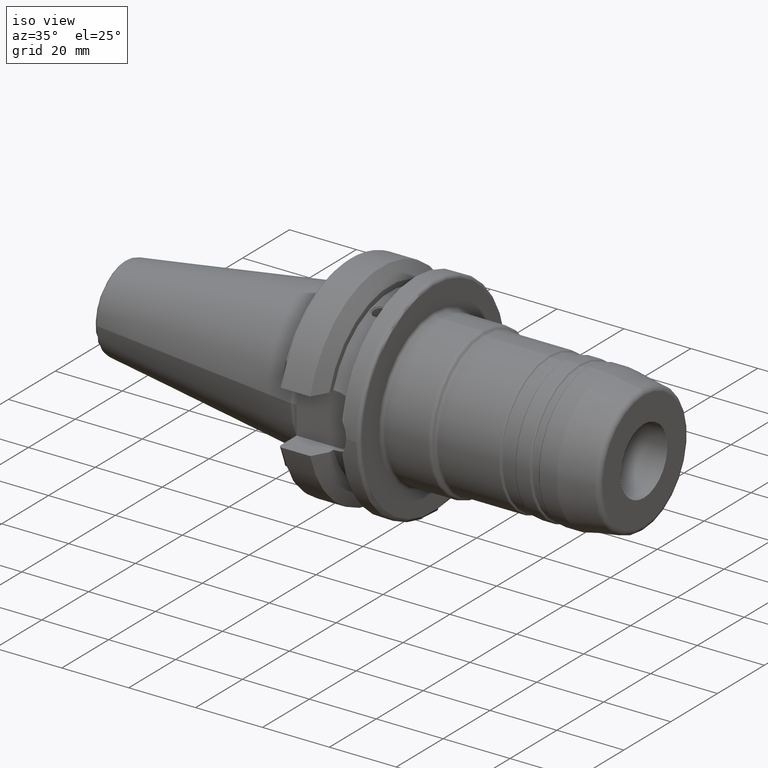
[diagram: clean part render]
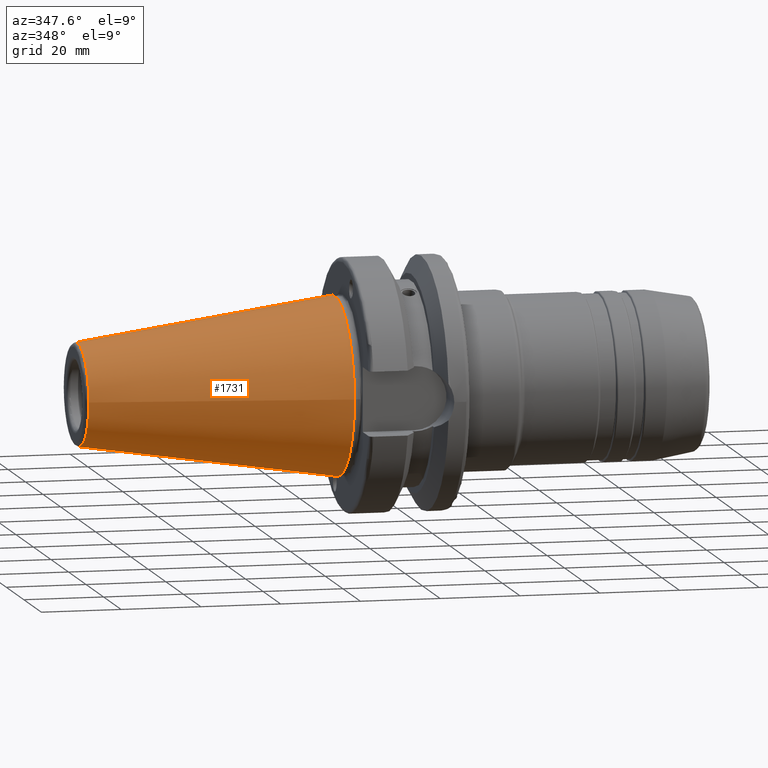
[diagram: tour spotlight — one face highlighted and labeled with its STEP entity id]
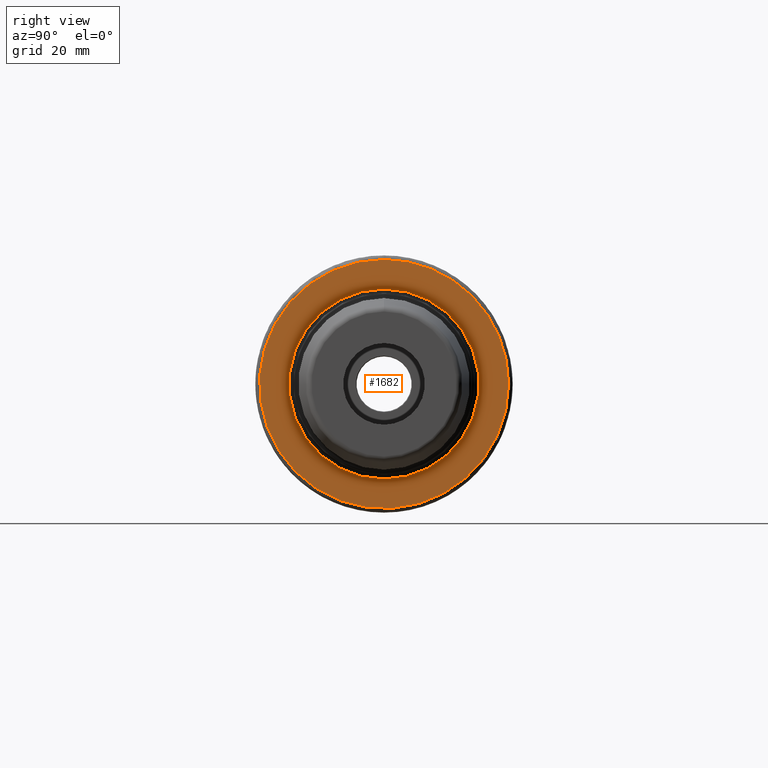
[diagram: tour spotlight — one face highlighted and labeled with its STEP entity id]
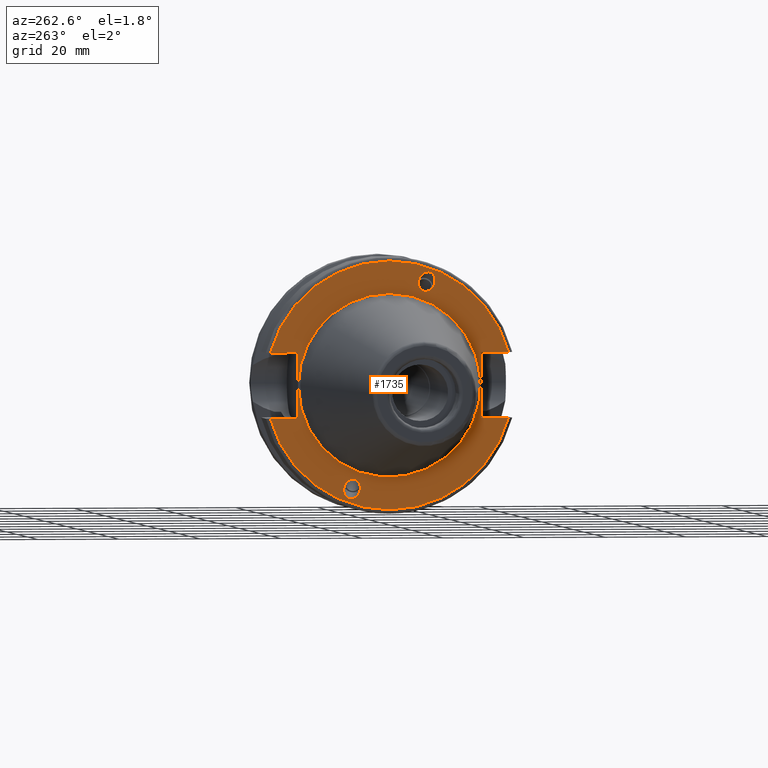
[diagram: tour spotlight — one face highlighted and labeled with its STEP entity id]
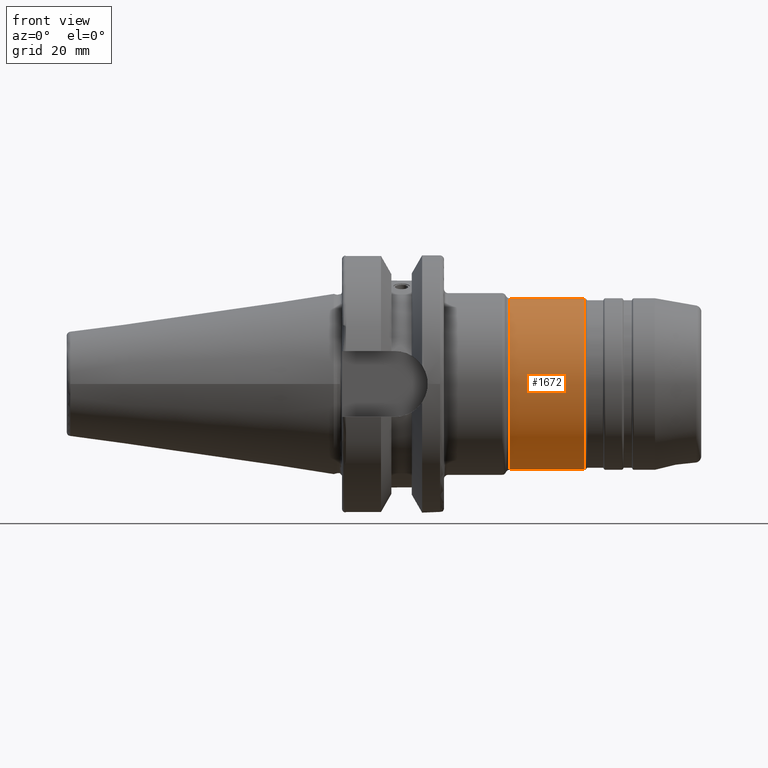
[diagram: tour spotlight — one face highlighted and labeled with its STEP entity id]
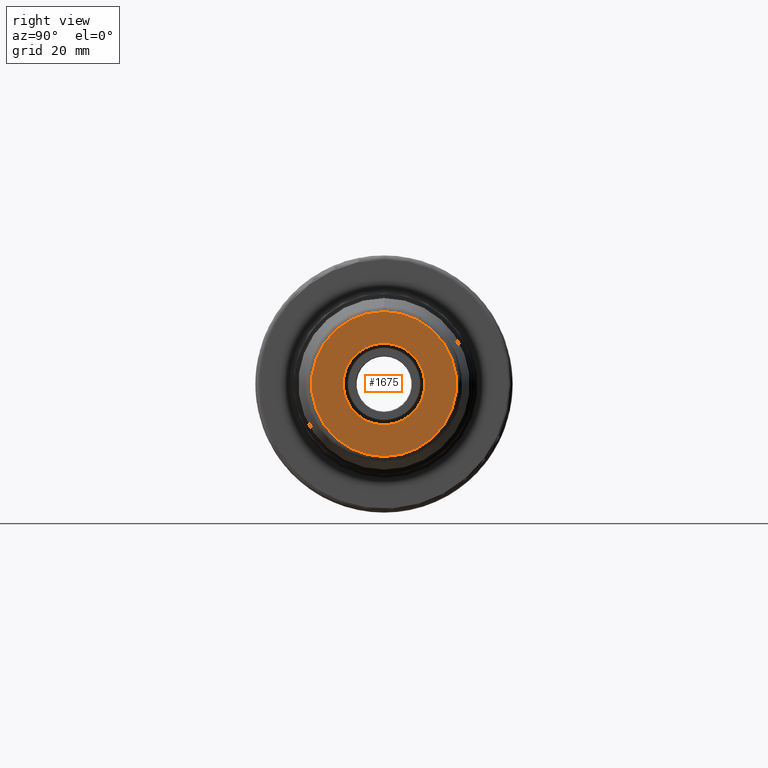
[diagram: tour spotlight — one face highlighted and labeled with its STEP entity id]
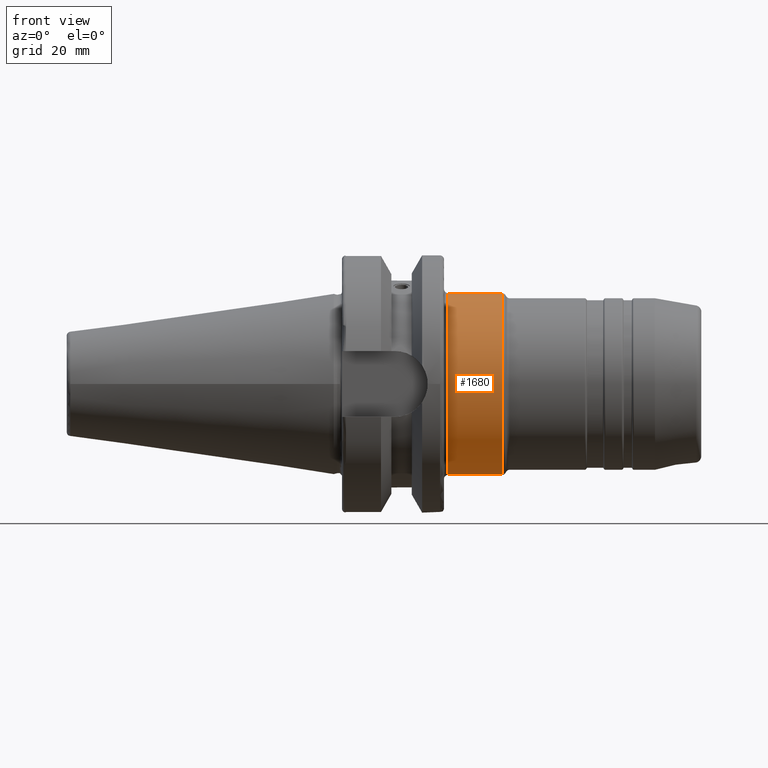
[diagram: tour spotlight — one face highlighted and labeled with its STEP entity id]
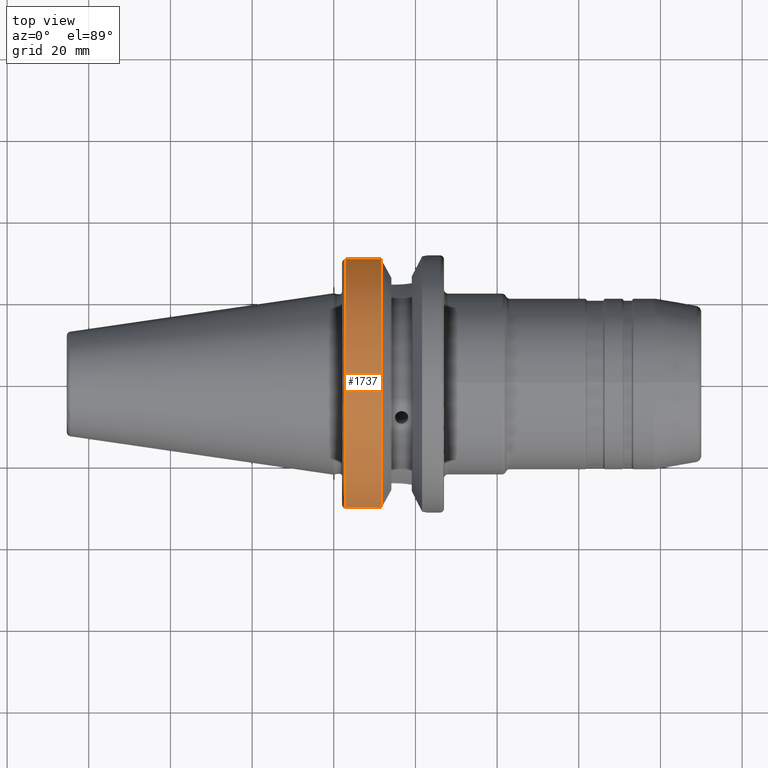
[diagram: tour spotlight — one face highlighted and labeled with its STEP entity id]
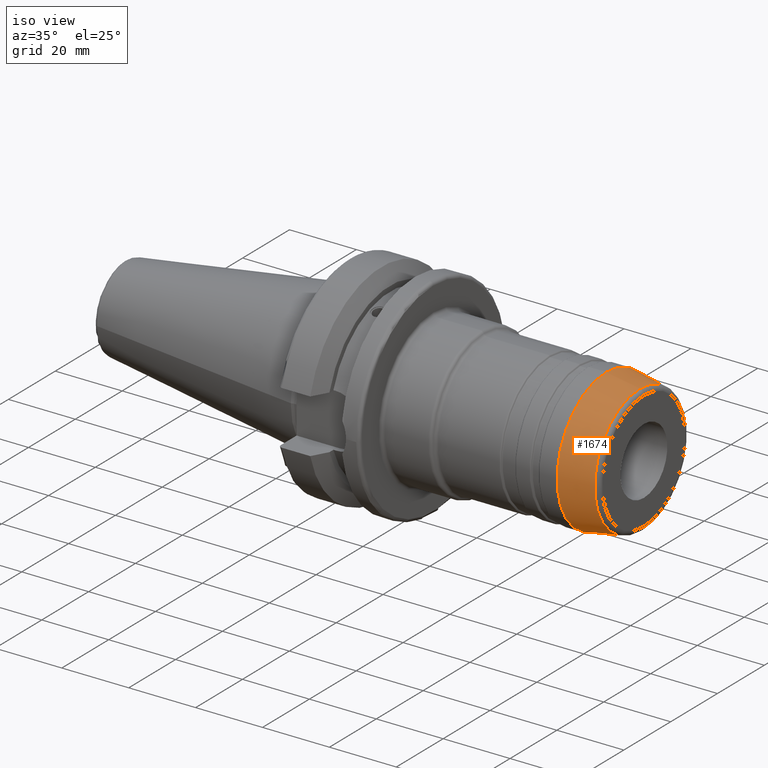
[diagram: tour spotlight — one face highlighted and labeled with its STEP entity id]
A machine part: a face-by-face anatomy tour. The part has 90 B-rep faces; the first image is the clean iso view, then the 8 largest visible faces are spotlighted one at a time (largest first), each with its STEP entity span.

Face 1 — auxiliary view, entity #1731. In plain terms, the highlighted conical surface has half-angle 8.297 deg.
Definition (entity closure, byte-faithful):
#131=CONICAL_SURFACE('',#1996,17.5186442890469,0.144812498238939);
#212=FACE_OUTER_BOUND('',#315,.T.);
#315=EDGE_LOOP('',(#1546,#1547,#1548,#1549,#1550,#1551,#1552));
#398=LINE('',#3372,#468);
#468=VECTOR('',#2566,17.5186442890469);
#604=CIRCLE('',#1992,12.8122885780937);
#605=CIRCLE('',#1993,12.8122885780937);
#606=CIRCLE('',#1994,12.8122885780937);
#608=CIRCLE('',#1997,22.225);
#609=CIRCLE('',#1998,22.225);
#801=VERTEX_POINT('',#3360);
#802=VERTEX_POINT('',#3361);
#803=VERTEX_POINT('',#3363);
#804=VERTEX_POINT('',#3368);
#805=VERTEX_POINT('',#3369);
#1058=EDGE_CURVE('',#801,#802,#604,.T.);
#1059=EDGE_CURVE('',#803,#801,#605,.T.);
#1060=EDGE_CURVE('',#802,#803,#606,.T.);
#1062=EDGE_CURVE('',#804,#805,#608,.T.);
#1063=EDGE_CURVE('',#805,#804,#609,.T.);
#1064=EDGE_CURVE('',#805,#803,#398,.T.);
#1546=ORIENTED_EDGE('',*,*,#1062,.F.);
#1547=ORIENTED_EDGE('',*,*,#1063,.F.);
#1548=ORIENTED_EDGE('',*,*,#1064,.T.);
#1549=ORIENTED_EDGE('',*,*,#1059,.T.);
#1550=ORIENTED_EDGE('',*,*,#1058,.T.);
#1551=ORIENTED_EDGE('',*,*,#1060,.T.);
#1552=ORIENTED_EDGE('',*,*,#1064,.F.);
#1731=ADVANCED_FACE('',(#212),#131,.T.);
#1992=AXIS2_PLACEMENT_3D('',#3362,#2552,#2553);
#1993=AXIS2_PLACEMENT_3D('',#3364,#2554,#2555);
#1994=AXIS2_PLACEMENT_3D('',#3365,#2556,#2557);
#1996=AXIS2_PLACEMENT_3D('',#3367,#2560,#2561);
#1997=AXIS2_PLACEMENT_3D('',#3370,#2562,#2563);
#1998=AXIS2_PLACEMENT_3D('',#3371,#2564,#2565);
#2552=DIRECTION('center_axis',(1.,0.,0.));
#2553=DIRECTION('ref_axis',(0.,0.,-1.));
#2554=DIRECTION('center_axis',(1.,0.,0.));
#2555=DIRECTION('ref_axis',(0.,0.,-1.));
#2556=DIRECTION('center_axis',(1.,0.,0.));
#2557=DIRECTION('ref_axis',(0.,0.,-1.));
#2560=DIRECTION('center_axis',(1.,0.,0.));
#2561=DIRECTION('ref_axis',(0.,1.,0.));
#2562=DIRECTION('center_axis',(1.,0.,0.));
#2563=DIRECTION('ref_axis',(0.,0.,-1.));
#2564=DIRECTION('center_axis',(1.,0.,0.));
#2565=DIRECTION('ref_axis',(0.,0.,-1.));
#2566=DIRECTION('',(-0.989532981063281,0.144306893071729,1.76724974695192E-17));
#3360=CARTESIAN_POINT('',(-64.5443068930717,12.8122885780937,0.));
#3361=CARTESIAN_POINT('',(-64.5443068930717,-1.56905281969147E-15,12.8122885780937));
#3362=CARTESIAN_POINT('Origin',(-64.5443068930717,0.,0.));
#3363=CARTESIAN_POINT('',(-64.5443068930717,-12.8122885780937,-1.56905281969147E-15));
#3364=CARTESIAN_POINT('Origin',(-64.5443068930717,0.,0.));
#3365=CARTESIAN_POINT('Origin',(-64.5443068930717,0.,0.));
#3367=CARTESIAN_POINT('Origin',(-32.2721534465359,0.,0.));
#3368=CARTESIAN_POINT('',(1.11022302462516E-15,22.225,0.));
#3369=CARTESIAN_POINT('',(4.44089209850063E-15,-22.225,-2.72177751110499E-15));
#3370=CARTESIAN_POINT('Origin',(0.,0.,0.));
#3371=CARTESIAN_POINT('Origin',(0.,0.,0.));
#3372=CARTESIAN_POINT('',(-32.2721534465359,-17.5186442890469,-2.14541516539823E-15));

Face 2 — right view, entity #1682. In plain terms, the highlighted planar face has unit normal (1, 0, 0).
Definition (entity closure, byte-faithful):
#38=PLANE('',#1865);
#80=FACE_BOUND('',#257,.T.);
#163=FACE_OUTER_BOUND('',#256,.T.);
#256=EDGE_LOOP('',(#1256,#1257));
#257=EDGE_LOOP('',(#1258));
#543=CIRCLE('',#1864,23.25);
#544=CIRCLE('',#1866,30.5);
#545=CIRCLE('',#1867,30.5);
#688=VERTEX_POINT('',#2872);
#689=VERTEX_POINT('',#2876);
#690=VERTEX_POINT('',#2877);
#904=EDGE_CURVE('',#688,#688,#543,.T.);
#905=EDGE_CURVE('',#689,#690,#544,.T.);
#906=EDGE_CURVE('',#690,#689,#545,.T.);
#1256=ORIENTED_EDGE('',*,*,#905,.T.);
#1257=ORIENTED_EDGE('',*,*,#906,.T.);
#1258=ORIENTED_EDGE('',*,*,#904,.F.);
#1682=ADVANCED_FACE('',(#163,#80),#38,.T.);
#1864=AXIS2_PLACEMENT_3D('',#2874,#2244,#2245);
#1865=AXIS2_PLACEMENT_3D('',#2875,#2246,#2247);
#1866=AXIS2_PLACEMENT_3D('',#2878,#2248,#2249);
#1867=AXIS2_PLACEMENT_3D('',#2879,#2250,#2251);
#2244=DIRECTION('center_axis',(1.,0.,0.));
#2245=DIRECTION('ref_axis',(0.,-1.22464679914735E-16,1.));
#2246=DIRECTION('center_axis',(1.,0.,0.));
#2247=DIRECTION('ref_axis',(0.,0.,-1.));
#2248=DIRECTION('center_axis',(1.,0.,0.));
#2249=DIRECTION('ref_axis',(0.,0.,-1.));
#2250=DIRECTION('center_axis',(1.,0.,0.));
#2251=DIRECTION('ref_axis',(0.,0.,-1.));
#2872=CARTESIAN_POINT('',(27.,5.69460761603519E-15,-23.25));
#2874=CARTESIAN_POINT('Origin',(27.,0.,0.));
#2875=CARTESIAN_POINT('Origin',(27.,0.,0.));
#2876=CARTESIAN_POINT('',(27.,30.5,0.));
#2877=CARTESIAN_POINT('',(27.,-3.73517273739943E-15,30.5));
#2878=CARTESIAN_POINT('Origin',(27.,0.,0.));
#2879=CARTESIAN_POINT('Origin',(27.,0.,0.));

Face 3 — auxiliary view, entity #1735. In plain terms, the highlighted planar face has unit normal (-1, 0, 0).
Definition (entity closure, byte-faithful):
#27=ELLIPSE('',#1905,2.44154917752291,2.);
#36=ELLIPSE('',#1933,2.44154917752291,2.);
#55=PLANE('',#2010);
#90=FACE_BOUND('',#320,.T.);
#91=FACE_BOUND('',#321,.T.);
#92=FACE_BOUND('',#322,.T.);
#216=FACE_OUTER_BOUND('',#319,.T.);
#319=EDGE_LOOP('',(#1573,#1574,#1575,#1576,#1577,#1578,#1579,#1580));
#320=EDGE_LOOP('',(#1581));
#321=EDGE_LOOP('',(#1582));
#322=EDGE_LOOP('',(#1583,#1584));
#371=LINE('',#3166,#441);
#375=LINE('',#3174,#445);
#378=LINE('',#3194,#448);
#389=LINE('',#3296,#459);
#392=LINE('',#3317,#462);
#394=LINE('',#3320,#464);
#441=VECTOR('',#2425,10.);
#445=VECTOR('',#2431,10.);
#448=VECTOR('',#2436,10.);
#459=VECTOR('',#2493,10.);
#462=VECTOR('',#2498,10.);
#464=VECTOR('',#2502,10.);
#587=CIRCLE('',#1963,30.5);
#616=CIRCLE('',#2008,22.5);
#617=CIRCLE('',#2009,22.5);
#618=CIRCLE('',#2011,30.5);
#716=VERTEX_POINT('',#2986);
#736=VERTEX_POINT('',#3077);
#755=VERTEX_POINT('',#3154);
#756=VERTEX_POINT('',#3165);
#758=VERTEX_POINT('',#3171);
#759=VERTEX_POINT('',#3173);
#775=VERTEX_POINT('',#3256);
#782=VERTEX_POINT('',#3293);
#783=VERTEX_POINT('',#3295);
#787=VERTEX_POINT('',#3316);
#811=VERTEX_POINT('',#3388);
#812=VERTEX_POINT('',#3390);
#942=EDGE_CURVE('',#716,#716,#27,.T.);
#970=EDGE_CURVE('',#736,#736,#36,.T.);
#992=EDGE_CURVE('',#756,#755,#371,.T.);
#996=EDGE_CURVE('',#759,#758,#375,.T.);
#1001=EDGE_CURVE('',#758,#756,#378,.T.);
#1022=EDGE_CURVE('',#759,#775,#587,.T.);
#1032=EDGE_CURVE('',#783,#782,#389,.T.);
#1037=EDGE_CURVE('',#787,#775,#392,.T.);
#1039=EDGE_CURVE('',#782,#787,#394,.T.);
#1073=EDGE_CURVE('',#812,#811,#616,.T.);
#1074=EDGE_CURVE('',#811,#812,#617,.T.);
#1075=EDGE_CURVE('',#783,#755,#618,.T.);
#1573=ORIENTED_EDGE('',*,*,#992,.T.);
#1574=ORIENTED_EDGE('',*,*,#1075,.F.);
#1575=ORIENTED_EDGE('',*,*,#1032,.T.);
#1576=ORIENTED_EDGE('',*,*,#1039,.T.);
#1577=ORIENTED_EDGE('',*,*,#1037,.T.);
#1578=ORIENTED_EDGE('',*,*,#1022,.F.);
#1579=ORIENTED_EDGE('',*,*,#996,.T.);
#1580=ORIENTED_EDGE('',*,*,#1001,.T.);
#1581=ORIENTED_EDGE('',*,*,#942,.T.);
#1582=ORIENTED_EDGE('',*,*,#970,.T.);
#1583=ORIENTED_EDGE('',*,*,#1073,.T.);
#1584=ORIENTED_EDGE('',*,*,#1074,.T.);
#1735=ADVANCED_FACE('',(#216,#90,#91,#92),#55,.T.);
#1905=AXIS2_PLACEMENT_3D('',#2988,#2335,#2336);
#1933=AXIS2_PLACEMENT_3D('',#3079,#2398,#2399);
#1963=AXIS2_PLACEMENT_3D('',#3257,#2480,#2481);
#2008=AXIS2_PLACEMENT_3D('',#3391,#2587,#2588);
#2009=AXIS2_PLACEMENT_3D('',#3392,#2589,#2590);
#2010=AXIS2_PLACEMENT_3D('',#3393,#2591,#2592);
#2011=AXIS2_PLACEMENT_3D('',#3394,#2593,#2594);
#2335=DIRECTION('center_axis',(1.,0.,0.));
#2336=DIRECTION('ref_axis',(5.68400912649004E-17,-0.342020143325671,0.939692620785908));
#2398=DIRECTION('center_axis',(1.,0.,0.));
#2399=DIRECTION('ref_axis',(5.68400912649004E-17,0.342020143325671,-0.939692620785908));
#2425=DIRECTION('',(0.,-1.,0.));
#2431=DIRECTION('',(0.,1.,0.));
#2436=DIRECTION('',(0.,0.,1.));
#2480=DIRECTION('center_axis',(1.,0.,0.));
#2481=DIRECTION('ref_axis',(0.,0.,-1.));
#2493=DIRECTION('',(0.,-1.,0.));
#2498=DIRECTION('',(0.,1.,0.));
#2502=DIRECTION('',(0.,0.,-1.));
#2587=DIRECTION('center_axis',(1.,0.,0.));
#2588=DIRECTION('ref_axis',(0.,0.,-1.));
#2589=DIRECTION('center_axis',(1.,0.,0.));
#2590=DIRECTION('ref_axis',(0.,0.,-1.));
#2591=DIRECTION('center_axis',(-1.,0.,0.));
#2592=DIRECTION('ref_axis',(0.,0.,1.));
#2593=DIRECTION('center_axis',(1.,0.,0.));
#2594=DIRECTION('ref_axis',(0.,0.,-1.));
#2986=CARTESIAN_POINT('',(1.99999999999999,-8.39948487015999,23.0773950158154));
#2988=CARTESIAN_POINT('Origin',(1.99999999999999,-9.23454386979305,25.3717007612195));
#3077=CARTESIAN_POINT('',(1.99999999999999,8.39948487015999,-23.0773950158154));
#3079=CARTESIAN_POINT('Origin',(1.99999999999999,9.23454386979305,-25.3717007612195));
#3154=CARTESIAN_POINT('',(1.99999999999999,-29.4184890842477,8.05));
#3165=CARTESIAN_POINT('',(1.99999999999999,-22.6,8.05));
#3166=CARTESIAN_POINT('',(1.99999999999999,3.95,8.05));
#3171=CARTESIAN_POINT('',(1.99999999999999,-22.6,-8.05));
#3173=CARTESIAN_POINT('',(1.99999999999999,-29.4184890842477,-8.05));
#3174=CARTESIAN_POINT('',(1.99999999999999,3.95,-8.05));
#3194=CARTESIAN_POINT('',(1.99999999999999,-22.6,0.));
#3256=CARTESIAN_POINT('',(1.99999999999999,29.4184890842477,-8.05));
#3257=CARTESIAN_POINT('Origin',(1.99999999999999,0.,0.));
#3293=CARTESIAN_POINT('',(1.99999999999999,22.6,8.05));
#3295=CARTESIAN_POINT('',(1.99999999999999,29.4184890842477,8.05));
#3296=CARTESIAN_POINT('',(1.99999999999999,26.55,8.05));
#3316=CARTESIAN_POINT('',(1.99999999999999,22.6,-8.05));
#3317=CARTESIAN_POINT('',(1.99999999999999,26.55,-8.05));
#3320=CARTESIAN_POINT('',(1.99999999999999,22.6,0.));
#3388=CARTESIAN_POINT('',(2.,-2.75545529808154E-15,22.5));
#3390=CARTESIAN_POINT('',(2.,22.5,0.));
#3391=CARTESIAN_POINT('Origin',(2.,0.,0.));
#3392=CARTESIAN_POINT('Origin',(2.,0.,0.));
#3393=CARTESIAN_POINT('Origin',(1.99999999999999,30.5,0.));
#3394=CARTESIAN_POINT('Origin',(1.99999999999999,0.,0.));

Face 4 — front view, entity #1672. In plain terms, the highlighted cylindrical surface (bore or boss wall) has radius 21 mm, axis along (1, 0, 0).
Definition (entity closure, byte-faithful):
#153=FACE_OUTER_BOUND('',#245,.T.);
#245=EDGE_LOOP('',(#1199,#1200,#1201,#1202,#1203,#1204));
#342=LINE('',#2820,#412);
#412=VECTOR('',#2176,21.);
#518=CIRCLE('',#1829,21.);
#519=CIRCLE('',#1830,21.);
#520=CIRCLE('',#1832,21.);
#521=CIRCLE('',#1833,21.);
#668=VERTEX_POINT('',#2813);
#669=VERTEX_POINT('',#2815);
#670=VERTEX_POINT('',#2819);
#671=VERTEX_POINT('',#2821);
#875=EDGE_CURVE('',#668,#669,#518,.T.);
#876=EDGE_CURVE('',#669,#668,#519,.T.);
#877=EDGE_CURVE('',#668,#670,#342,.T.);
#878=EDGE_CURVE('',#671,#670,#520,.T.);
#879=EDGE_CURVE('',#670,#671,#521,.T.);
#1199=ORIENTED_EDGE('',*,*,#876,.F.);
#1200=ORIENTED_EDGE('',*,*,#875,.F.);
#1201=ORIENTED_EDGE('',*,*,#877,.T.);
#1202=ORIENTED_EDGE('',*,*,#878,.F.);
#1203=ORIENTED_EDGE('',*,*,#879,.F.);
#1204=ORIENTED_EDGE('',*,*,#877,.F.);
#1626=CYLINDRICAL_SURFACE('',#1831,21.);
#1672=ADVANCED_FACE('',(#153),#1626,.T.);
#1829=AXIS2_PLACEMENT_3D('',#2816,#2170,#2171);
#1830=AXIS2_PLACEMENT_3D('',#2817,#2172,#2173);
#1831=AXIS2_PLACEMENT_3D('',#2818,#2174,#2175);
#1832=AXIS2_PLACEMENT_3D('',#2822,#2177,#2178);
#1833=AXIS2_PLACEMENT_3D('',#2823,#2179,#2180);
#2170=DIRECTION('center_axis',(1.,0.,0.));
#2171=DIRECTION('ref_axis',(0.,1.22464679914735E-16,1.));
#2172=DIRECTION('center_axis',(1.,0.,0.));
#2173=DIRECTION('ref_axis',(0.,1.22464679914735E-16,1.));
#2174=DIRECTION('center_axis',(1.,0.,0.));
#2175=DIRECTION('ref_axis',(0.,0.,-1.));
#2176=DIRECTION('',(-1.,0.,0.));
#2177=DIRECTION('center_axis',(-1.,0.,0.));
#2178=DIRECTION('ref_axis',(0.,1.22464679914735E-16,1.));
#2179=DIRECTION('center_axis',(-1.,0.,0.));
#2180=DIRECTION('ref_axis',(0.,1.22464679914735E-16,1.));
#2813=CARTESIAN_POINT('',(61.4803847577293,-2.57175827820944E-15,21.));
#2815=CARTESIAN_POINT('',(61.4803847577293,0.,-21.));
#2816=CARTESIAN_POINT('Origin',(61.4803847577293,0.,0.));
#2817=CARTESIAN_POINT('Origin',(61.4803847577293,0.,0.));
#2818=CARTESIAN_POINT('Origin',(52.1056624327026,0.,0.));
#2819=CARTESIAN_POINT('',(43.0773502691896,-2.57175827820944E-15,21.));
#2820=CARTESIAN_POINT('',(52.1056624327026,-2.57175827820944E-15,21.));
#2821=CARTESIAN_POINT('',(43.0773502691896,-5.14351655641889E-15,-21.));
#2822=CARTESIAN_POINT('Origin',(43.0773502691896,0.,0.));
#2823=CARTESIAN_POINT('Origin',(43.0773502691896,0.,0.));

Face 5 — right view, entity #1675. In plain terms, the highlighted planar face has unit normal (1, 0, 0).
Definition (entity closure, byte-faithful):
#37=PLANE('',#1843);
#79=FACE_BOUND('',#249,.T.);
#156=FACE_OUTER_BOUND('',#248,.T.);
#248=EDGE_LOOP('',(#1217,#1218));
#249=EDGE_LOOP('',(#1219,#1220));
#522=CIRCLE('',#1835,17.7413505532341);
#526=CIRCLE('',#1839,17.7413505532341);
#529=CIRCLE('',#1844,10.);
#530=CIRCLE('',#1845,10.);
#672=VERTEX_POINT('',#2825);
#673=VERTEX_POINT('',#2826);
#678=VERTEX_POINT('',#2841);
#679=VERTEX_POINT('',#2842);
#880=EDGE_CURVE('',#672,#673,#522,.T.);
#884=EDGE_CURVE('',#673,#672,#526,.T.);
#888=EDGE_CURVE('',#678,#679,#529,.T.);
#889=EDGE_CURVE('',#679,#678,#530,.T.);
#1217=ORIENTED_EDGE('',*,*,#880,.F.);
#1218=ORIENTED_EDGE('',*,*,#884,.F.);
#1219=ORIENTED_EDGE('',*,*,#888,.F.);
#1220=ORIENTED_EDGE('',*,*,#889,.F.);
#1675=ADVANCED_FACE('',(#156,#79),#37,.T.);
#1835=AXIS2_PLACEMENT_3D('',#2827,#2183,#2184);
#1839=AXIS2_PLACEMENT_3D('',#2833,#2191,#2192);
#1843=AXIS2_PLACEMENT_3D('',#2840,#2200,#2201);
#1844=AXIS2_PLACEMENT_3D('',#2843,#2202,#2203);
#1845=AXIS2_PLACEMENT_3D('',#2844,#2204,#2205);
#2183=DIRECTION('center_axis',(-1.,0.,0.));
#2184=DIRECTION('ref_axis',(0.,1.22464679914735E-16,1.));
#2191=DIRECTION('center_axis',(-1.,0.,0.));
#2192=DIRECTION('ref_axis',(0.,1.22464679914735E-16,1.));
#2200=DIRECTION('center_axis',(1.,0.,0.));
#2201=DIRECTION('ref_axis',(0.,0.,-1.));
#2202=DIRECTION('center_axis',(1.,0.,0.));
#2203=DIRECTION('ref_axis',(0.,0.,-1.));
#2204=DIRECTION('center_axis',(1.,0.,0.));
#2205=DIRECTION('ref_axis',(0.,0.,-1.));
#2825=CARTESIAN_POINT('',(90.,-4.34537763351385E-15,-17.7413505532341));
#2826=CARTESIAN_POINT('',(90.,-2.17268881675692E-15,17.7413505532341));
#2827=CARTESIAN_POINT('Origin',(90.,0.,0.));
#2833=CARTESIAN_POINT('Origin',(90.,0.,0.));
#2840=CARTESIAN_POINT('Origin',(90.,0.,-10.));
#2841=CARTESIAN_POINT('',(90.,0.,-10.));
#2842=CARTESIAN_POINT('',(90.,-1.22464679914735E-15,10.));
#2843=CARTESIAN_POINT('Origin',(90.,0.,0.));
#2844=CARTESIAN_POINT('Origin',(90.,0.,0.));

Face 6 — front view, entity #1680. In plain terms, the highlighted cylindrical surface (bore or boss wall) has radius 22.25 mm, axis along (1, 0, 0).
Definition (entity closure, byte-faithful):
#161=FACE_OUTER_BOUND('',#254,.T.);
#254=EDGE_LOOP('',(#1245,#1246,#1247,#1248,#1249,#1250));
#345=LINE('',#2867,#415);
#415=VECTOR('',#2235,22.25);
#538=CIRCLE('',#1857,22.25);
#539=CIRCLE('',#1858,22.25);
#540=CIRCLE('',#1860,22.25);
#541=CIRCLE('',#1861,22.25);
#684=VERTEX_POINT('',#2860);
#685=VERTEX_POINT('',#2862);
#686=VERTEX_POINT('',#2866);
#687=VERTEX_POINT('',#2868);
#898=EDGE_CURVE('',#684,#685,#538,.T.);
#899=EDGE_CURVE('',#685,#684,#539,.T.);
#900=EDGE_CURVE('',#684,#686,#345,.T.);
#901=EDGE_CURVE('',#687,#686,#540,.T.);
#902=EDGE_CURVE('',#686,#687,#541,.T.);
#1245=ORIENTED_EDGE('',*,*,#899,.F.);
#1246=ORIENTED_EDGE('',*,*,#898,.F.);
#1247=ORIENTED_EDGE('',*,*,#900,.T.);
#1248=ORIENTED_EDGE('',*,*,#901,.F.);
#1249=ORIENTED_EDGE('',*,*,#902,.F.);
#1250=ORIENTED_EDGE('',*,*,#900,.F.);
#1627=CYLINDRICAL_SURFACE('',#1859,22.25);
#1680=ADVANCED_FACE('',(#161),#1627,.T.);
#1857=AXIS2_PLACEMENT_3D('',#2863,#2229,#2230);
#1858=AXIS2_PLACEMENT_3D('',#2864,#2231,#2232);
#1859=AXIS2_PLACEMENT_3D('',#2865,#2233,#2234);
#1860=AXIS2_PLACEMENT_3D('',#2869,#2236,#2237);
#1861=AXIS2_PLACEMENT_3D('',#2870,#2238,#2239);
#2229=DIRECTION('center_axis',(1.,0.,0.));
#2230=DIRECTION('ref_axis',(0.,1.22464679914735E-16,1.));
#2231=DIRECTION('center_axis',(1.,0.,0.));
#2232=DIRECTION('ref_axis',(0.,1.22464679914735E-16,1.));
#2233=DIRECTION('center_axis',(1.,0.,0.));
#2234=DIRECTION('ref_axis',(0.,0.,-1.));
#2235=DIRECTION('',(-1.,0.,0.));
#2236=DIRECTION('center_axis',(-1.,0.,0.));
#2237=DIRECTION('ref_axis',(0.,-1.22464679914735E-16,1.));
#2238=DIRECTION('center_axis',(-1.,0.,0.));
#2239=DIRECTION('ref_axis',(0.,-1.22464679914735E-16,1.));
#2860=CARTESIAN_POINT('',(41.2009618943233,-2.72483912810286E-15,22.25));
#2862=CARTESIAN_POINT('',(41.2009618943233,0.,-22.25));
#2863=CARTESIAN_POINT('Origin',(41.2009618943233,0.,0.));
#2864=CARTESIAN_POINT('Origin',(41.2009618943233,0.,0.));
#2865=CARTESIAN_POINT('Origin',(34.3891560817565,0.,0.));
#2866=CARTESIAN_POINT('',(28.,-2.72483912810286E-15,22.25));
#2867=CARTESIAN_POINT('',(34.3891560817565,-2.72483912810286E-15,22.25));
#2868=CARTESIAN_POINT('',(28.,0.,-22.25));
#2869=CARTESIAN_POINT('Origin',(28.,0.,0.));
#2870=CARTESIAN_POINT('Origin',(28.,0.,0.));

Face 7 — top view, entity #1737. In plain terms, the highlighted cylindrical surface (partial cylindrical patch) has radius 31.5 mm, axis along (1, 0, 0).
Definition (entity closure, byte-faithful):
#218=FACE_OUTER_BOUND('',#324,.T.);
#324=EDGE_LOOP('',(#1589,#1590,#1591,#1592));
#370=LINE('',#3153,#440);
#390=LINE('',#3309,#460);
#440=VECTOR('',#2424,10.);
#460=VECTOR('',#2494,10.);
#619=CIRCLE('',#2013,31.5);
#620=CIRCLE('',#2015,31.5000000000001);
#753=VERTEX_POINT('',#3148);
#754=VERTEX_POINT('',#3152);
#784=VERTEX_POINT('',#3297);
#785=VERTEX_POINT('',#3308);
#990=EDGE_CURVE('',#754,#753,#370,.T.);
#1034=EDGE_CURVE('',#785,#784,#390,.T.);
#1076=EDGE_CURVE('',#784,#754,#619,.T.);
#1077=EDGE_CURVE('',#785,#753,#620,.T.);
#1589=ORIENTED_EDGE('',*,*,#990,.T.);
#1590=ORIENTED_EDGE('',*,*,#1077,.F.);
#1591=ORIENTED_EDGE('',*,*,#1034,.T.);
#1592=ORIENTED_EDGE('',*,*,#1076,.T.);
#1651=CYLINDRICAL_SURFACE('',#2014,31.5);
#1737=ADVANCED_FACE('',(#218),#1651,.T.);
#2013=AXIS2_PLACEMENT_3D('',#3396,#2597,#2598);
#2014=AXIS2_PLACEMENT_3D('',#3397,#2599,#2600);
#2015=AXIS2_PLACEMENT_3D('',#3398,#2601,#2602);
#2424=DIRECTION('',(1.,0.,0.));
#2494=DIRECTION('',(-1.,0.,0.));
#2597=DIRECTION('center_axis',(1.,0.,0.));
#2598=DIRECTION('ref_axis',(0.,0.,-1.));
#2599=DIRECTION('center_axis',(1.,0.,0.));
#2600=DIRECTION('ref_axis',(0.,1.,0.));
#2601=DIRECTION('center_axis',(1.,0.,0.));
#2602=DIRECTION('ref_axis',(0.,0.,-1.));
#3148=CARTESIAN_POINT('',(11.5690363073382,-30.4540227227866,8.05));
#3152=CARTESIAN_POINT('',(2.99999999999999,-30.4540227227866,8.05));
#3153=CARTESIAN_POINT('',(7.28451815366907,-30.4540227227866,8.05));
#3297=CARTESIAN_POINT('',(2.99999999999999,30.4540227227866,8.05));
#3308=CARTESIAN_POINT('',(11.5690363073382,30.4540227227866,8.05));
#3309=CARTESIAN_POINT('',(7.28451815366907,30.4540227227866,8.05));
#3396=CARTESIAN_POINT('Origin',(2.99999999999999,0.,0.));
#3397=CARTESIAN_POINT('Origin',(7.28451815366907,0.,0.));
#3398=CARTESIAN_POINT('Origin',(11.5690363073382,0.,0.));

Face 8 — iso view, entity #1674. In plain terms, the highlighted conical surface has half-angle 10 deg.
Definition (entity closure, byte-faithful):
#122=CONICAL_SURFACE('',#1840,20.,0.174532925199433);
#155=FACE_OUTER_BOUND('',#247,.T.);
#247=EDGE_LOOP('',(#1211,#1212,#1213,#1214,#1215,#1216));
#343=LINE('',#2836,#413);
#413=VECTOR('',#2195,20.);
#524=CIRCLE('',#1837,19.2185621827524);
#525=CIRCLE('',#1838,19.2185621827524);
#527=CIRCLE('',#1841,20.9848077530122);
#528=CIRCLE('',#1842,20.9848077530122);
#674=VERTEX_POINT('',#2828);
#675=VERTEX_POINT('',#2830);
#676=VERTEX_POINT('',#2835);
#677=VERTEX_POINT('',#2837);
#882=EDGE_CURVE('',#674,#675,#524,.T.);
#883=EDGE_CURVE('',#675,#674,#525,.T.);
#885=EDGE_CURVE('',#674,#676,#343,.T.);
#886=EDGE_CURVE('',#677,#676,#527,.T.);
#887=EDGE_CURVE('',#676,#677,#528,.T.);
#1211=ORIENTED_EDGE('',*,*,#883,.F.);
#1212=ORIENTED_EDGE('',*,*,#882,.F.);
#1213=ORIENTED_EDGE('',*,*,#885,.T.);
#1214=ORIENTED_EDGE('',*,*,#886,.F.);
#1215=ORIENTED_EDGE('',*,*,#887,.F.);
#1216=ORIENTED_EDGE('',*,*,#885,.F.);
#1674=ADVANCED_FACE('',(#155),#122,.T.);
#1837=AXIS2_PLACEMENT_3D('',#2831,#2187,#2188);
#1838=AXIS2_PLACEMENT_3D('',#2832,#2189,#2190);
#1840=AXIS2_PLACEMENT_3D('',#2834,#2193,#2194);
#1841=AXIS2_PLACEMENT_3D('',#2838,#2196,#2197);
#1842=AXIS2_PLACEMENT_3D('',#2839,#2198,#2199);
#2187=DIRECTION('center_axis',(1.,0.,0.));
#2188=DIRECTION('ref_axis',(0.,0.,1.));
#2189=DIRECTION('center_axis',(1.,0.,0.));
#2190=DIRECTION('ref_axis',(0.,0.,1.));
#2193=DIRECTION('center_axis',(-1.,0.,0.));
#2194=DIRECTION('ref_axis',(0.,0.,-1.));
#2195=DIRECTION('',(-0.984807753012208,-2.12657684957577E-17,0.17364817766693));
#2196=DIRECTION('center_axis',(-1.,0.,0.));
#2197=DIRECTION('ref_axis',(0.,0.,1.));
#2198=DIRECTION('center_axis',(-1.,0.,0.));
#2199=DIRECTION('ref_axis',(0.,0.,1.));
#2828=CARTESIAN_POINT('',(88.7604722665004,-2.35359506613221E-15,19.2185621827524));
#2830=CARTESIAN_POINT('',(88.7604722665004,0.,-19.2185621827524));
#2831=CARTESIAN_POINT('Origin',(88.7604722665004,-2.35359506613221E-15,
0.));
#2832=CARTESIAN_POINT('Origin',(88.7604722665004,-2.35359506613221E-15,
0.));
#2834=CARTESIAN_POINT('Origin',(84.3287181803823,0.,0.));
#2835=CARTESIAN_POINT('',(78.7435958749055,-2.5698977645449E-15,20.9848077530122));
#2836=CARTESIAN_POINT('',(84.3287181803823,-2.44929359829471E-15,20.));
#2837=CARTESIAN_POINT('',(78.7435958749055,-5.1397955290898E-15,-20.9848077530122));
#2838=CARTESIAN_POINT('Origin',(78.7435958749055,-2.5698977645449E-15,0.));
#2839=CARTESIAN_POINT('Origin',(78.7435958749055,-2.5698977645449E-15,0.));